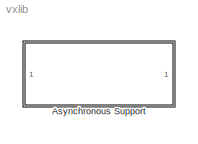
MODEL vxlib
KIND library
CONFIG PreLoadFcn = warning('''vxlib'' is obsolete, use ''vxlib1'' instead.');
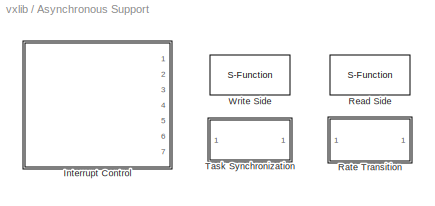
BLOCK [SubSystem] Asynchronous Support
  MaskDisplay = disp('Asynchronous\\nInterrupt\\nSupport')
  MaskIconFrame = on
  MaskIconOpaque = on
  MaskIconRotate = none
  MaskIconUnits = autoscale
  Ports = []
  TreatAsAtomicUnit = off
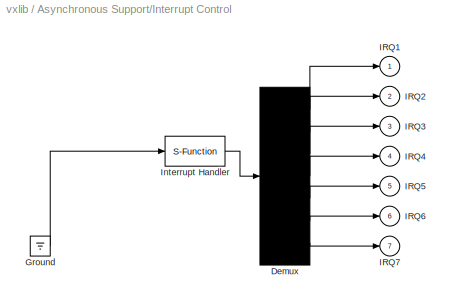
BLOCK [SubSystem] Asynchronous Support/Interrupt Control
  MaskCallbackString = ||||
  MaskDescription = Install the downstream function-call subsystem as a VME Interrupt Service Routine.
  MaskDisplay = text(.1, .75, str0)\ntext(.1, .60, str1)\ntext(.1, .45, str2)\ntext(.1, .30, str3)
  MaskEnableString = on,on,on,on,on
  MaskHelp = web(['file://',docroot,'/toolbox/rtw/vxinterrupt.html']);\n
  MaskIconFrame = on
  MaskIconOpaque = off
  MaskIconRotate = none
  MaskIconUnits = normalized
  MaskInitialization = if isunix,\n  devicedir = '/rtw/c/tornado/devices';\nelse,\n  devicedir = '<path>';\nend;\n\nif isempty(findstr(devicedir, path)),\n  if isempty(getenv('TMW_V5_SANDBOX')),\n    addpath([matlabroot devicedir]);\n  else,\n    addpath([getenv('TMW_V5_SANDBOX') devicedir]);\n  end;\nend\n\nif mode == 1\n  str0 = '';\n  str1 = 'Interrupt';\n  str2 = 'Emulation';\n  str3 = '(Simulati...<+397ch>
  MaskPromptString = Mode|VME interrupt number(s)|VME interrupt vector offset number(s)|Preemption flag(s): ISR preemptable-1, non-preemptable-0|IRQ direction (simulation only)
  MaskSelfModifiable = on
  MaskStyleString = popup(Simulation|RTW),edit,edit,edit,popup(Rising|Falling|Either)
  MaskTabNameString = ,,,,
  MaskToolTipString = on,on,on,on,on
  MaskTunableValueString = on,on,on,on,on
  MaskType = VxWorks Interrupt Block
  MaskValueString = RTW|[1 2 3 4 5 6 7]|[192 193 194 195 196 197 198] |[1]|Rising
  MaskVarAliasString = ,,,,
  MaskVariables = mode=@1;irqNumbers=&2;irqOffsets=&3;irqPreemptionFlags=&4;irqDirection=@5;
  MaskVisibilityString = on,on,on,on,on
  Ports = [0, 7]
  Tag = AsyncRateTransition
  TreatAsAtomicUnit = off
BLOCK [Demux] Asynchronous Support/Interrupt Control/Demux
  Outputs = 7
  Ports = [1, 7]
BLOCK [Ground] Asynchronous Support/Interrupt Control/Ground
BLOCK [Outport] Asynchronous Support/Interrupt Control/IRQ1
  IconDisplay = Port number
BLOCK [Outport] Asynchronous Support/Interrupt Control/IRQ2
  IconDisplay = Port number
  Port = 2
BLOCK [Outport] Asynchronous Support/Interrupt Control/IRQ3
  IconDisplay = Port number
  Port = 3
BLOCK [Outport] Asynchronous Support/Interrupt Control/IRQ4
  IconDisplay = Port number
  Port = 4
BLOCK [Outport] Asynchronous Support/Interrupt Control/IRQ5
  IconDisplay = Port number
  Port = 5
BLOCK [Outport] Asynchronous Support/Interrupt Control/IRQ6
  IconDisplay = Port number
  Port = 6
BLOCK [Outport] Asynchronous Support/Interrupt Control/IRQ7
  IconDisplay = Port number
  Port = 7
BLOCK [S-Function] Asynchronous Support/Interrupt Control/Interrupt Handler
  FunctionName = vxinterrupt
  Parameters = mode, numbers, offsets, irqDirection, flags
  Ports = [1, 1]
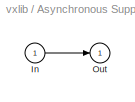
BLOCK [SubSystem] Asynchronous Support/Rate Transition
  MaskDescription = Converts rate of input signal to specified sample time.
  MaskDisplay = disp(['Unprotected\\nAsynchronous\\nRate Transition'])
  MaskEnableString = on
  MaskHelp = web(['file://',docroot,'/toolbox/rtw/vxrate.html']);
  MaskIconFrame = on
  MaskIconOpaque = on
  MaskIconRotate = none
  MaskIconUnits = autoscale
  MaskPromptString = Sample time
  MaskStyleString = edit
  MaskToolTipString = on
  MaskTunableValueString = on
  MaskType = Rate Transition
  MaskValueString = -1
  MaskVariables = sample_time=@1;
  MaskVisibilityString = on
  Ports = [1, 1]
  TreatAsAtomicUnit = off
BLOCK [Inport] Asynchronous Support/Rate Transition/In
  IconDisplay = Port number
  SampleTime = sample_time
  Tag = AsyncRateTransition
BLOCK [Outport] Asynchronous Support/Rate Transition/Out
  IconDisplay = Port number
  InitialOutput = 0
  Tag = AsyncRateTransition
BLOCK [S-Function] Asynchronous Support/Read Side
  FunctionName = vxdbuffer
  MaskDescription = Double Buffer data between asynchronous subsystems/blocks in a model.
  MaskDisplay = disp(['Asynchronous\\nRate Transition\\n(Reader)'])
  MaskEnableString = on
  MaskHelp = web(['file://',docroot,'/toolbox/rtw/vxdbuffer.html']);
  MaskIconFrame = on
  MaskIconOpaque = on
  MaskIconRotate = none
  MaskIconUnits = autoscale
  MaskInitialization = if isunix,\n  devicedir = '/rtw/c/tornado/devices';\nelse,\n  devicedir = '<path>';\nend;\n\nif isempty(findstr(devicedir, path)),\n  if isempty(getenv('TMW_V5_SANDBOX')),\n    addpath([matlabroot devicedir]);\n  else,\n    addpath([getenv('TMW_V5_SANDBOX') devicedir]);\n  end;\nend\nDB_Type = 'READ';
  MaskPromptString = Sample time
  MaskStyleString = edit
  MaskToolTipString = on
  MaskTunableValueString = on
  MaskType = Asynchronous Rate Transition: Reader
  MaskValueString = -1
  MaskVariables = sample_time=@1;
  MaskVisibilityString = on
  Parameters = DB_Type, sample_time
  Ports = [1, 1]
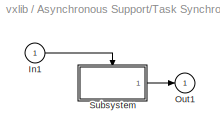
BLOCK [SubSystem] Asynchronous Support/Task Synchronization
  MaskCallbackString = ||
  MaskDescription = Spawns the downstream function-call subsystem as a VxWorks task.
  MaskDisplay = disp(['RTW Task\\n',taskName])\n
  MaskEnableString = on,on,on
  MaskHelp = web(['file://',docroot,'/toolbox/rtw/vxtask.html']);
  MaskIconFrame = on
  MaskIconOpaque = on
  MaskIconRotate = none
  MaskIconUnits = autoscale
  MaskInitialization = if isunix,\n  devicedir = '/rtw/c/tornado/devices';\nelse,\n  devicedir = '<path>';\nend;\n\nif isempty(findstr(devicedir, path)),\n  if isempty(getenv('TMW_V5_SANDBOX')),\n    addpath([matlabroot devicedir]);\n  else,\n    addpath([getenv('TMW_V5_SANDBOX') devicedir]);\n  end;\nend\n\nif ~iscvar(taskName) & (length(taskName) > 0)\n   errordlg('invalid Task Name, first characte...<+155ch>
  MaskPromptString = Task name (optional) (10 characters or less)|Task priority (0-255)|Stack size (bytes)
  MaskStyleString = edit,edit,edit
  MaskTabNameString = ,,
  MaskToolTipString = on,on,on
  MaskTunableValueString = on,on,on
  MaskType = VxWorks Task Block
  MaskValueString = |20|1024
  MaskVarAliasString = ,,
  MaskVariables = taskName=&1;taskPriority=@2;taskStackSize=@3;
  MaskVisibilityString = on,on,on
  Ports = [1, 1]
  TreatAsAtomicUnit = off
BLOCK [Inport] Asynchronous Support/Task Synchronization/In1
  IconDisplay = Port number
BLOCK [Outport] Asynchronous Support/Task Synchronization/Out1
  IconDisplay = Port number
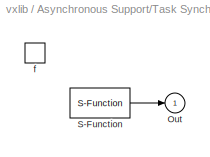
BLOCK [SubSystem] Asynchronous Support/Task Synchronization/Subsystem
  MaskIconFrame = on
  MaskIconOpaque = on
  MaskIconRotate = none
  MaskIconUnits = autoscale
  MaskType = VxWorks Task Block
  Ports = [0, 1, 0, 1]
  TreatAsAtomicUnit = on
BLOCK [Outport] Asynchronous Support/Task Synchronization/Subsystem/Out
  IconDisplay = Port number
BLOCK [S-Function] Asynchronous Support/Task Synchronization/Subsystem/S-Function
  FunctionName = vxtask
  Parameters = taskName, taskPriority, taskStackSize
  Ports = [0, 1]
BLOCK [TriggerPort] Asynchronous Support/Task Synchronization/Subsystem/f
  Ports = []
  TriggerType = function-call
BLOCK [S-Function] Asynchronous Support/Write Side
  FunctionName = vxdbuffer
  MaskDescription = Double Buffer data between asynchronous subsystems/blocks in a model.
  MaskDisplay = disp(['Asynchronous\\nRate Transition\\n(Writer)'])
  MaskEnableString = on
  MaskHelp = web(['file://',docroot,'/toolbox/rtw/vxdbuffer.html']);
  MaskIconFrame = on
  MaskIconOpaque = on
  MaskIconRotate = none
  MaskIconUnits = autoscale
  MaskInitialization = if isunix,\n  devicedir = '/rtw/c/tornado/devices';\nelse,\n  devicedir = '<path>';\nend;\n\nif isempty(findstr(devicedir, path)),\n  if isempty(getenv('TMW_V5_SANDBOX')),\n    addpath([matlabroot devicedir]);\n  else,\n    addpath([getenv('TMW_V5_SANDBOX') devicedir]);\n  end;\nend\nDB_Type = 'WRITE';
  MaskPromptString = Sample time
  MaskStyleString = edit
  MaskToolTipString = on
  MaskTunableValueString = on
  MaskType = Asynchronous Rate Transition: Writer
  MaskValueString = -1
  MaskVariables = sample_time=@1;
  MaskVisibilityString = on
  Parameters = DB_Type, sample_time
  Ports = [1, 1]
LINE Asynchronous Support/Interrupt Control/Demux:1 -> Asynchronous Support/Interrupt Control/IRQ1:1
LINE Asynchronous Support/Interrupt Control/Demux:2 -> Asynchronous Support/Interrupt Control/IRQ2:1
LINE Asynchronous Support/Interrupt Control/Demux:3 -> Asynchronous Support/Interrupt Control/IRQ3:1
LINE Asynchronous Support/Interrupt Control/Demux:4 -> Asynchronous Support/Interrupt Control/IRQ4:1
LINE Asynchronous Support/Interrupt Control/Demux:5 -> Asynchronous Support/Interrupt Control/IRQ5:1
LINE Asynchronous Support/Interrupt Control/Demux:6 -> Asynchronous Support/Interrupt Control/IRQ6:1
LINE Asynchronous Support/Interrupt Control/Demux:7 -> Asynchronous Support/Interrupt Control/IRQ7:1
LINE Asynchronous Support/Interrupt Control/Ground:1 -> Asynchronous Support/Interrupt Control/Interrupt Handler:1
LINE Asynchronous Support/Interrupt Control/Interrupt Handler:1 -> Asynchronous Support/Interrupt Control/Demux:1
LINE Asynchronous Support/Rate Transition/In:1 -> Asynchronous Support/Rate Transition/Out:1
LINE Asynchronous Support/Task Synchronization/In1:1 -> Asynchronous Support/Task Synchronization/Subsystem:trigger
LINE Asynchronous Support/Task Synchronization/Subsystem/S-Function:1 -> Asynchronous Support/Task Synchronization/Subsystem/Out:1
LINE Asynchronous Support/Task Synchronization/Subsystem:1 -> Asynchronous Support/Task Synchronization/Out1:1
note: 4 file-system paths scrubbed to <path> (not preserved elsewhere — flat text is the only slx artifact)
